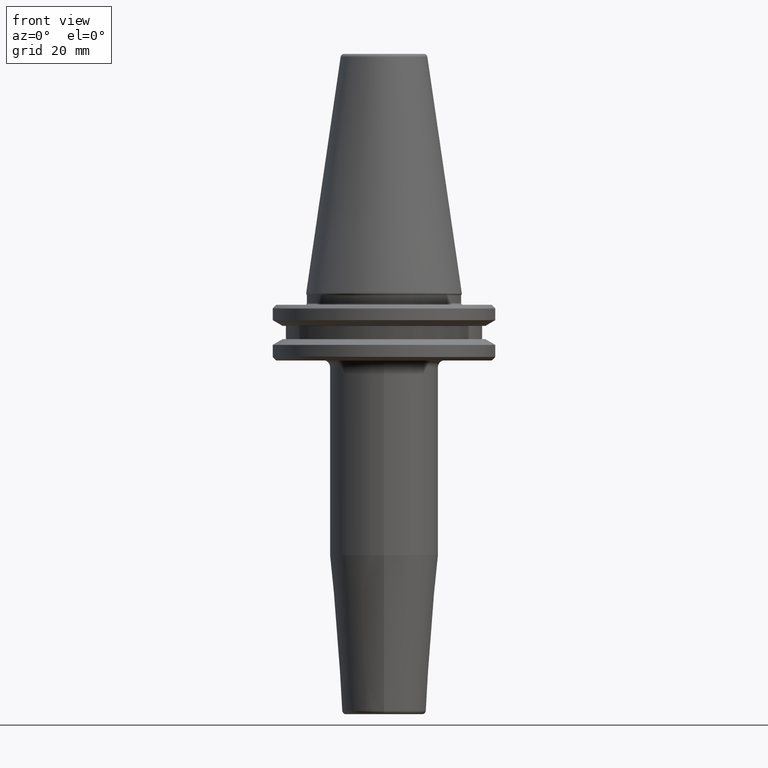
[diagram: clean part render]
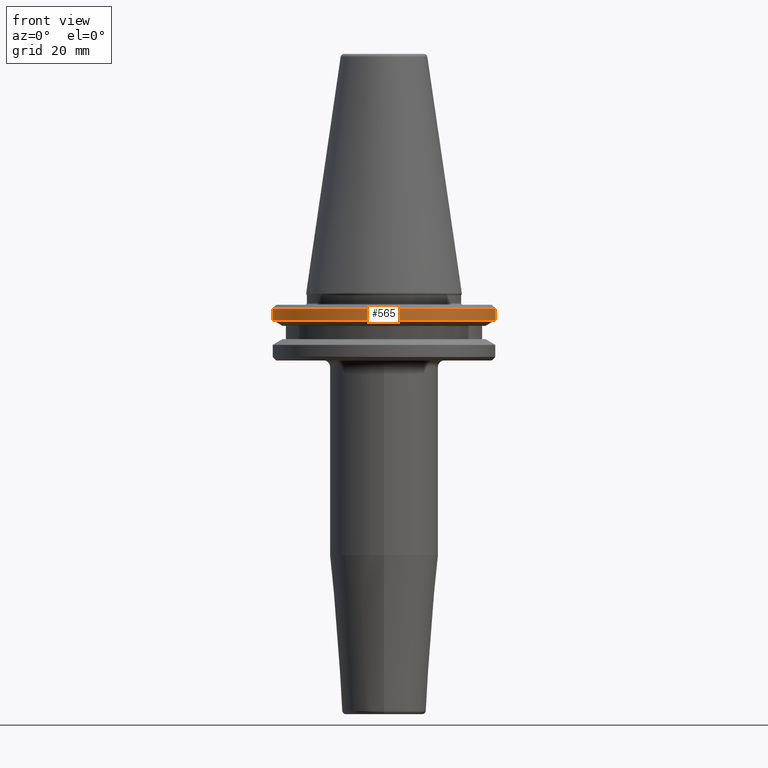
[diagram: same view with one face highlighted and labeled with its STEP entity id]
A machine part, front view. The second image highlights one B-rep face of the part: STEP entity #565.
In plain terms, the highlighted cylindrical surface (partial cylindrical patch) has radius 31.75 mm, axis along (-0, -0, 1).
Its self-contained STEP definition (entity closure, byte-faithful):
#19 = DIRECTION ( 'NONE',  ( 1.000000000000000000, 0.0000000000000000000, 0.0000000000000000000 ) ) ;
#75 = DIRECTION ( 'NONE',  ( -0.0000000000000000000, -0.0000000000000000000, 1.000000000000000000 ) ) ;
#110 = CARTESIAN_POINT ( 'NONE',  ( 31.75000000000000000, 0.0000000000000000000, -4.365685424949250000 ) ) ;
#115 = DIRECTION ( 'NONE',  ( -0.0000000000000000000, -0.0000000000000000000, 1.000000000000000000 ) ) ;
#122 = AXIS2_PLACEMENT_3D ( 'NONE', #1009, #418, #1105 ) ;
#159 = ORIENTED_EDGE ( 'NONE', *, *, #1030, .F. ) ;
#174 = LINE ( 'NONE', #748, #402 ) ;
#179 = EDGE_CURVE ( 'NONE', #654, #373, #174, .T. ) ;
#247 = ORIENTED_EDGE ( 'NONE', *, *, #922, .F. ) ;
#280 = EDGE_LOOP ( 'NONE', ( #247, #429, #341, #159 ) ) ;
#341 = ORIENTED_EDGE ( 'NONE', *, *, #179, .T. ) ;
#373 = VERTEX_POINT ( 'NONE', #110 ) ;
#389 = DIRECTION ( 'NONE',  ( -0.0000000000000000000, -0.0000000000000000000, 1.000000000000000000 ) ) ;
#402 = VECTOR ( 'NONE', #75, 1000.000000000000000 ) ;
#418 = DIRECTION ( 'NONE',  ( -0.0000000000000000000, -0.0000000000000000000, 1.000000000000000000 ) ) ;
#429 = ORIENTED_EDGE ( 'NONE', *, *, #1071, .T. ) ;
#463 = LINE ( 'NONE', #674, #668 ) ;
#502 = CARTESIAN_POINT ( 'NONE',  ( 0.0000000000000000000, 0.0000000000000000000, 113.5216080541959500 ) ) ;
#518 = VERTEX_POINT ( 'NONE', #1128 ) ;
#565 = ADVANCED_FACE ( 'NONE', ( #1125 ), #855, .T. ) ;
#654 = VERTEX_POINT ( 'NONE', #1185 ) ;
#668 = VECTOR ( 'NONE', #115, 1000.000000000000000 ) ;
#674 = CARTESIAN_POINT ( 'NONE',  ( -31.75000000000000000, 3.888253587292846500E-015, 113.5216080541959500 ) ) ;
#748 = CARTESIAN_POINT ( 'NONE',  ( 31.75000000000000000, 0.0000000000000000000, 113.5216080541959500 ) ) ;
#752 = CIRCLE ( 'NONE', #122, 31.75000000000000000 ) ;
#855 = CYLINDRICAL_SURFACE ( 'NONE', #1159, 31.75000000000000000 ) ;
#878 = DIRECTION ( 'NONE',  ( -0.0000000000000000000, -0.0000000000000000000, 1.000000000000000000 ) ) ;
#895 = AXIS2_PLACEMENT_3D ( 'NONE', #1204, #389, #1076 ) ;
#922 = EDGE_CURVE ( 'NONE', #1160, #518, #463, .T. ) ;
#1009 = CARTESIAN_POINT ( 'NONE',  ( 0.0000000000000000000, 0.0000000000000000000, -4.365685424949250000 ) ) ;
#1030 = EDGE_CURVE ( 'NONE', #518, #373, #752, .T. ) ;
#1071 = EDGE_CURVE ( 'NONE', #1160, #654, #1192, .T. ) ;
#1076 = DIRECTION ( 'NONE',  ( 1.000000000000000000, 0.0000000000000000000, 0.0000000000000000000 ) ) ;
#1088 = CARTESIAN_POINT ( 'NONE',  ( -31.75000000000000000, 3.888253587292846500E-015, -7.578163357943284800 ) ) ;
#1105 = DIRECTION ( 'NONE',  ( 1.000000000000000000, 0.0000000000000000000, 0.0000000000000000000 ) ) ;
#1125 = FACE_OUTER_BOUND ( 'NONE', #280, .T. ) ;
#1128 = CARTESIAN_POINT ( 'NONE',  ( -31.75000000000000000, 3.888253587292846500E-015, -4.365685424949250000 ) ) ;
#1159 = AXIS2_PLACEMENT_3D ( 'NONE', #502, #878, #19 ) ;
#1160 = VERTEX_POINT ( 'NONE', #1088 ) ;
#1185 = CARTESIAN_POINT ( 'NONE',  ( 31.75000000000000000, 0.0000000000000000000, -7.578163357943284800 ) ) ;
#1192 = CIRCLE ( 'NONE', #895, 31.75000000000000000 ) ;
#1204 = CARTESIAN_POINT ( 'NONE',  ( 0.0000000000000000000, 0.0000000000000000000, -7.578163357943284800 ) ) ;